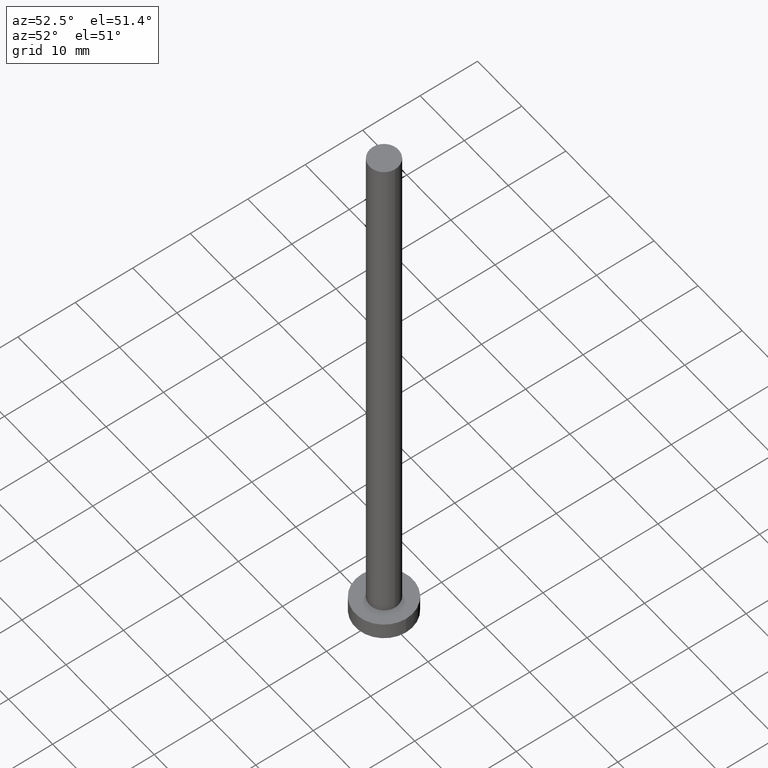
[diagram: clean part render]
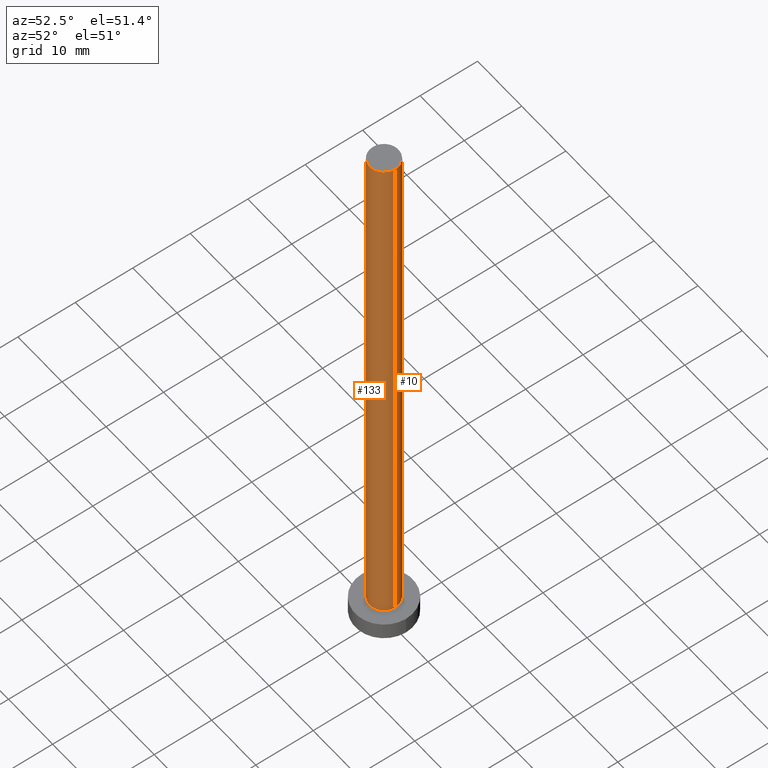
[diagram: same view with one multi-face feature highlighted, each face labeled with its STEP entity id]
A machine part, auxiliary view. The highlighted faces form ONE feature: a constant-radius fillet chain: 2 tangent blend faces with common blend radius 2.5 mm. The faces share edges in the B-rep.
Their STEP definitions:
[1] entity #133 (Cylinder):
#7 = AXIS2_PLACEMENT_3D ( 'NONE', #98, #189, #209 ) ;
#17 = AXIS2_PLACEMENT_3D ( 'NONE', #140, #107, #183 ) ;
#21 = EDGE_CURVE ( 'NONE', #205, #80, #93, .T. ) ;
#28 = FACE_OUTER_BOUND ( 'NONE', #60, .T. ) ;
#39 = CARTESIAN_POINT ( 'NONE',  ( 2.500000000000000000, 3.061616997868382648E-16, 100.0000000000000000 ) ) ;
#43 = ORIENTED_EDGE ( 'NONE', *, *, #77, .T. ) ;
#59 = ORIENTED_EDGE ( 'NONE', *, *, #70, .F. ) ;
#60 = EDGE_LOOP ( 'NONE', ( #59, #253, #43, #155 ) ) ;
#70 = EDGE_CURVE ( 'NONE', #79, #80, #233, .T. ) ;
#77 = EDGE_CURVE ( 'NONE', #94, #205, #119, .T. ) ;
#79 = VERTEX_POINT ( 'NONE', #114 ) ;
#80 = VERTEX_POINT ( 'NONE', #252 ) ;
#84 = CYLINDRICAL_SURFACE ( 'NONE', #17, 2.500000000000000000 ) ;
#85 = CARTESIAN_POINT ( 'NONE',  ( 0.000000000000000000, 0.000000000000000000, 100.0000000000000000 ) ) ;
#93 = CIRCLE ( 'NONE', #7, 2.500000000000000000 ) ;
#94 = VERTEX_POINT ( 'NONE', #236 ) ;
#98 = CARTESIAN_POINT ( 'NONE',  ( 0.000000000000000000, 0.000000000000000000, 3.000000000000000000 ) ) ;
#107 = DIRECTION ( 'NONE',  ( -0.000000000000000000, -0.000000000000000000, -1.000000000000000000 ) ) ;
#114 = CARTESIAN_POINT ( 'NONE',  ( 2.500000000000000000, 3.061616997868382648E-16, 100.0000000000000000 ) ) ;
#119 = LINE ( 'NONE', #157, #237 ) ;
#133 = ADVANCED_FACE ( 'NONE', ( #28 ), #84, .T. ) ;
#137 = DIRECTION ( 'NONE',  ( -0.000000000000000000, -0.000000000000000000, -1.000000000000000000 ) ) ;
#140 = CARTESIAN_POINT ( 'NONE',  ( 0.000000000000000000, 0.000000000000000000, 100.0000000000000000 ) ) ;
#150 = CARTESIAN_POINT ( 'NONE',  ( -2.500000000000000000, 0.000000000000000000, 3.000000000000000000 ) ) ;
#155 = ORIENTED_EDGE ( 'NONE', *, *, #21, .T. ) ;
#157 = CARTESIAN_POINT ( 'NONE',  ( -2.500000000000000000, 0.000000000000000000, 100.0000000000000000 ) ) ;
#158 = VECTOR ( 'NONE', #137, 1000.000000000000000 ) ;
#163 = CIRCLE ( 'NONE', #251, 2.500000000000000000 ) ;
#174 = DIRECTION ( 'NONE',  ( -0.000000000000000000, -0.000000000000000000, -1.000000000000000000 ) ) ;
#181 = DIRECTION ( 'NONE',  ( 1.000000000000000000, 0.000000000000000000, 0.000000000000000000 ) ) ;
#183 = DIRECTION ( 'NONE',  ( -1.000000000000000000, 0.000000000000000000, 0.000000000000000000 ) ) ;
#189 = DIRECTION ( 'NONE',  ( 0.000000000000000000, 0.000000000000000000, 1.000000000000000000 ) ) ;
#205 = VERTEX_POINT ( 'NONE', #150 ) ;
#209 = DIRECTION ( 'NONE',  ( 1.000000000000000000, 0.000000000000000000, 0.000000000000000000 ) ) ;
#233 = LINE ( 'NONE', #39, #158 ) ;
#235 = DIRECTION ( 'NONE',  ( 0.000000000000000000, 0.000000000000000000, 1.000000000000000000 ) ) ;
#236 = CARTESIAN_POINT ( 'NONE',  ( -2.500000000000000000, 0.000000000000000000, 100.0000000000000000 ) ) ;
#237 = VECTOR ( 'NONE', #174, 1000.000000000000000 ) ;
#241 = EDGE_CURVE ( 'NONE', #94, #79, #163, .T. ) ;
#251 = AXIS2_PLACEMENT_3D ( 'NONE', #85, #235, #181 ) ;
#252 = CARTESIAN_POINT ( 'NONE',  ( 2.500000000000000000, 3.061616997868382648E-16, 3.000000000000000000 ) ) ;
#253 = ORIENTED_EDGE ( 'NONE', *, *, #241, .F. ) ;
[2] entity #10 (Cylinder):
#1 = EDGE_CURVE ( 'NONE', #80, #205, #29, .T. ) ;
#10 = ADVANCED_FACE ( 'NONE', ( #230 ), #152, .T. ) ;
#11 = AXIS2_PLACEMENT_3D ( 'NONE', #210, #62, #192 ) ;
#29 = CIRCLE ( 'NONE', #57, 2.500000000000000000 ) ;
#31 = CIRCLE ( 'NONE', #82, 2.500000000000000000 ) ;
#39 = CARTESIAN_POINT ( 'NONE',  ( 2.500000000000000000, 3.061616997868382648E-16, 100.0000000000000000 ) ) ;
#42 = CARTESIAN_POINT ( 'NONE',  ( 0.000000000000000000, 0.000000000000000000, 3.000000000000000000 ) ) ;
#44 = ORIENTED_EDGE ( 'NONE', *, *, #77, .F. ) ;
#57 = AXIS2_PLACEMENT_3D ( 'NONE', #42, #249, #175 ) ;
#62 = DIRECTION ( 'NONE',  ( -0.000000000000000000, -0.000000000000000000, -1.000000000000000000 ) ) ;
#70 = EDGE_CURVE ( 'NONE', #79, #80, #233, .T. ) ;
#71 = DIRECTION ( 'NONE',  ( 1.000000000000000000, 0.000000000000000000, 0.000000000000000000 ) ) ;
#77 = EDGE_CURVE ( 'NONE', #94, #205, #119, .T. ) ;
#79 = VERTEX_POINT ( 'NONE', #114 ) ;
#80 = VERTEX_POINT ( 'NONE', #252 ) ;
#82 = AXIS2_PLACEMENT_3D ( 'NONE', #177, #213, #71 ) ;
#94 = VERTEX_POINT ( 'NONE', #236 ) ;
#97 = EDGE_LOOP ( 'NONE', ( #149, #120, #151, #44 ) ) ;
#114 = CARTESIAN_POINT ( 'NONE',  ( 2.500000000000000000, 3.061616997868382648E-16, 100.0000000000000000 ) ) ;
#119 = LINE ( 'NONE', #157, #237 ) ;
#120 = ORIENTED_EDGE ( 'NONE', *, *, #70, .T. ) ;
#137 = DIRECTION ( 'NONE',  ( -0.000000000000000000, -0.000000000000000000, -1.000000000000000000 ) ) ;
#149 = ORIENTED_EDGE ( 'NONE', *, *, #226, .F. ) ;
#150 = CARTESIAN_POINT ( 'NONE',  ( -2.500000000000000000, 0.000000000000000000, 3.000000000000000000 ) ) ;
#151 = ORIENTED_EDGE ( 'NONE', *, *, #1, .T. ) ;
#152 = CYLINDRICAL_SURFACE ( 'NONE', #11, 2.500000000000000000 ) ;
#157 = CARTESIAN_POINT ( 'NONE',  ( -2.500000000000000000, 0.000000000000000000, 100.0000000000000000 ) ) ;
#158 = VECTOR ( 'NONE', #137, 1000.000000000000000 ) ;
#174 = DIRECTION ( 'NONE',  ( -0.000000000000000000, -0.000000000000000000, -1.000000000000000000 ) ) ;
#175 = DIRECTION ( 'NONE',  ( 1.000000000000000000, 0.000000000000000000, 0.000000000000000000 ) ) ;
#177 = CARTESIAN_POINT ( 'NONE',  ( 0.000000000000000000, 0.000000000000000000, 100.0000000000000000 ) ) ;
#192 = DIRECTION ( 'NONE',  ( -1.000000000000000000, 0.000000000000000000, 0.000000000000000000 ) ) ;
#205 = VERTEX_POINT ( 'NONE', #150 ) ;
#210 = CARTESIAN_POINT ( 'NONE',  ( 0.000000000000000000, 0.000000000000000000, 100.0000000000000000 ) ) ;
#213 = DIRECTION ( 'NONE',  ( 0.000000000000000000, 0.000000000000000000, 1.000000000000000000 ) ) ;
#226 = EDGE_CURVE ( 'NONE', #79, #94, #31, .T. ) ;
#230 = FACE_OUTER_BOUND ( 'NONE', #97, .T. ) ;
#233 = LINE ( 'NONE', #39, #158 ) ;
#236 = CARTESIAN_POINT ( 'NONE',  ( -2.500000000000000000, 0.000000000000000000, 100.0000000000000000 ) ) ;
#237 = VECTOR ( 'NONE', #174, 1000.000000000000000 ) ;
#249 = DIRECTION ( 'NONE',  ( 0.000000000000000000, 0.000000000000000000, 1.000000000000000000 ) ) ;
#252 = CARTESIAN_POINT ( 'NONE',  ( 2.500000000000000000, 3.061616997868382648E-16, 3.000000000000000000 ) ) ;